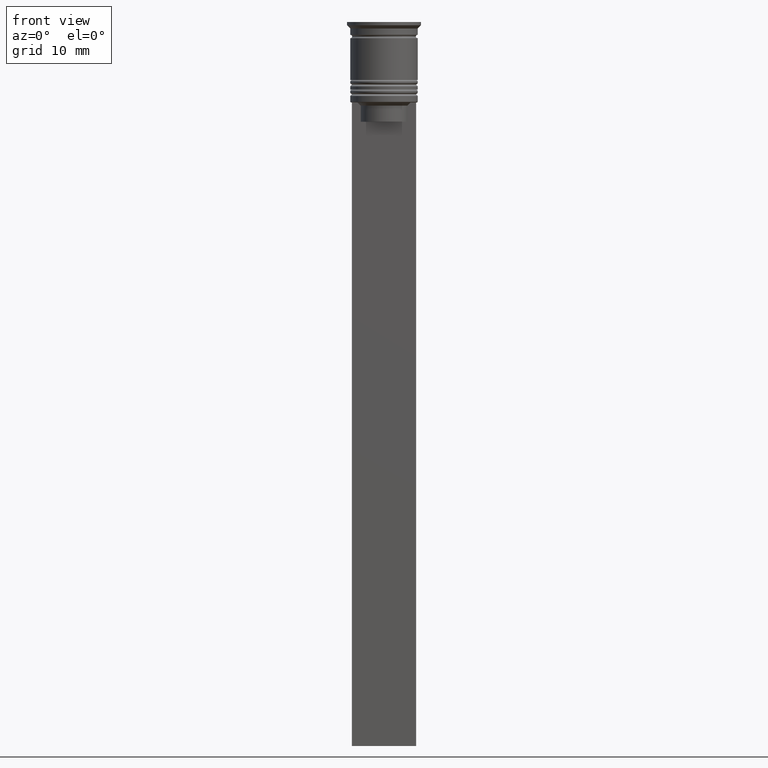
[diagram: clean part render]
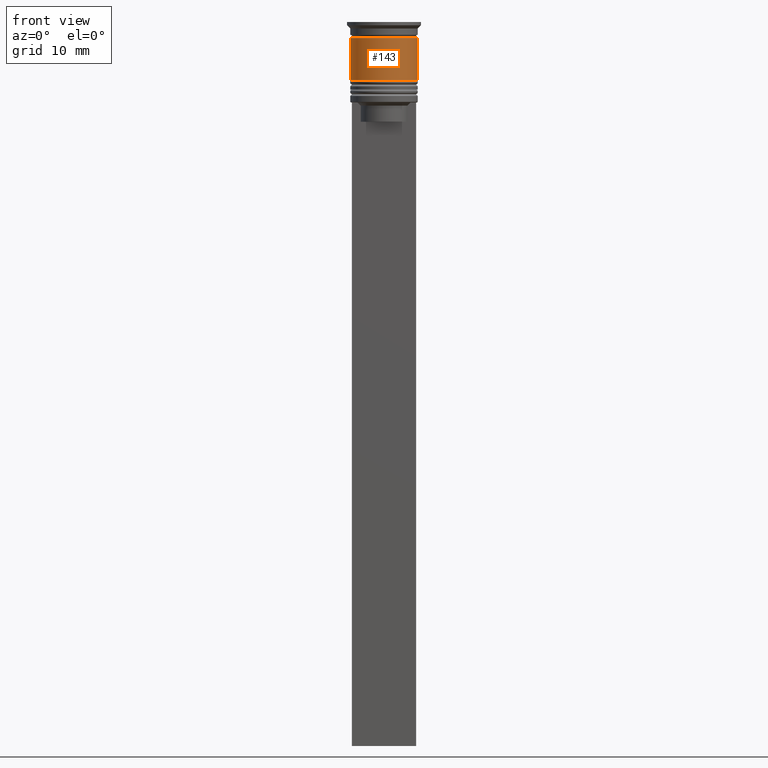
[diagram: same view with one face highlighted and labeled with its STEP entity id]
A machine part, front view. The second image highlights one B-rep face of the part: STEP entity #143.
In plain terms, the highlighted cylindrical surface (edge-blend (fillet) strip) has radius 5.25 mm, axis along (-0, -0, 1).
Its self-contained STEP definition (entity closure, byte-faithful):
#71 = DIRECTION ( 'NONE',  ( -0.000000000000000000, -0.000000000000000000, 1.000000000000000000 ) ) ;
#143 = ADVANCED_FACE ( 'NONE', ( #297 ), #1014, .T. ) ;
#170 = VERTEX_POINT ( 'NONE', #1875 ) ;
#218 = CARTESIAN_POINT ( 'NONE',  ( 5.250000000000000888, 0.000000000000000000, -9.000000000000001776 ) ) ;
#257 = CARTESIAN_POINT ( 'NONE',  ( 0.000000000000000000, 0.000000000000000000, -9.000000000000001776 ) ) ;
#297 = FACE_OUTER_BOUND ( 'NONE', #1971, .T. ) ;
#378 = LINE ( 'NONE', #2017, #1828 ) ;
#435 = VERTEX_POINT ( 'NONE', #218 ) ;
#503 = CARTESIAN_POINT ( 'NONE',  ( -5.249999999999999112, 6.429395695523604153E-16, -2.499999999999999556 ) ) ;
#544 = CIRCLE ( 'NONE', #1407, 5.249999999999999112 ) ;
#592 = CARTESIAN_POINT ( 'NONE',  ( 5.249999999999999112, 0.000000000000000000, -2.499999999999999556 ) ) ;
#641 = EDGE_CURVE ( 'NONE', #170, #435, #1936, .T. ) ;
#692 = CARTESIAN_POINT ( 'NONE',  ( 0.000000000000000000, 0.000000000000000000, -2.499999999999999556 ) ) ;
#803 = CARTESIAN_POINT ( 'NONE',  ( 5.250000000000000000, 0.000000000000000000, 0.000000000000000000 ) ) ;
#906 = EDGE_CURVE ( 'NONE', #2090, #1609, #544, .T. ) ;
#969 = EDGE_CURVE ( 'NONE', #170, #2090, #378, .T. ) ;
#1013 = ORIENTED_EDGE ( 'NONE', *, *, #969, .F. ) ;
#1014 = CYLINDRICAL_SURFACE ( 'NONE', #2100, 5.250000000000000000 ) ;
#1068 = DIRECTION ( 'NONE',  ( -0.000000000000000000, -0.000000000000000000, 1.000000000000000000 ) ) ;
#1093 = ORIENTED_EDGE ( 'NONE', *, *, #641, .T. ) ;
#1169 = DIRECTION ( 'NONE',  ( 1.000000000000000000, 0.000000000000000000, 0.000000000000000000 ) ) ;
#1172 = DIRECTION ( 'NONE',  ( -0.000000000000000000, -0.000000000000000000, 1.000000000000000000 ) ) ;
#1340 = CARTESIAN_POINT ( 'NONE',  ( 0.000000000000000000, 0.000000000000000000, 0.000000000000000000 ) ) ;
#1359 = DIRECTION ( 'NONE',  ( -0.000000000000000000, -0.000000000000000000, 1.000000000000000000 ) ) ;
#1407 = AXIS2_PLACEMENT_3D ( 'NONE', #692, #1414, #1927 ) ;
#1414 = DIRECTION ( 'NONE',  ( -0.000000000000000000, -0.000000000000000000, 1.000000000000000000 ) ) ;
#1530 = LINE ( 'NONE', #803, #2170 ) ;
#1573 = ORIENTED_EDGE ( 'NONE', *, *, #1960, .T. ) ;
#1609 = VERTEX_POINT ( 'NONE', #592 ) ;
#1828 = VECTOR ( 'NONE', #1068, 1000.000000000000000 ) ;
#1858 = DIRECTION ( 'NONE',  ( 1.000000000000000000, 0.000000000000000000, 0.000000000000000000 ) ) ;
#1875 = CARTESIAN_POINT ( 'NONE',  ( -5.250000000000000888, 6.429395695523605139E-16, -9.000000000000001776 ) ) ;
#1927 = DIRECTION ( 'NONE',  ( 1.000000000000000000, 0.000000000000000000, 0.000000000000000000 ) ) ;
#1936 = CIRCLE ( 'NONE', #2098, 5.250000000000000888 ) ;
#1960 = EDGE_CURVE ( 'NONE', #435, #1609, #1530, .T. ) ;
#1971 = EDGE_LOOP ( 'NONE', ( #1013, #1093, #1573, #2305 ) ) ;
#2017 = CARTESIAN_POINT ( 'NONE',  ( -5.250000000000000000, 6.429395695523604153E-16, 0.000000000000000000 ) ) ;
#2090 = VERTEX_POINT ( 'NONE', #503 ) ;
#2098 = AXIS2_PLACEMENT_3D ( 'NONE', #257, #71, #1169 ) ;
#2100 = AXIS2_PLACEMENT_3D ( 'NONE', #1340, #1172, #1858 ) ;
#2170 = VECTOR ( 'NONE', #1359, 1000.000000000000000 ) ;
#2305 = ORIENTED_EDGE ( 'NONE', *, *, #906, .F. ) ;